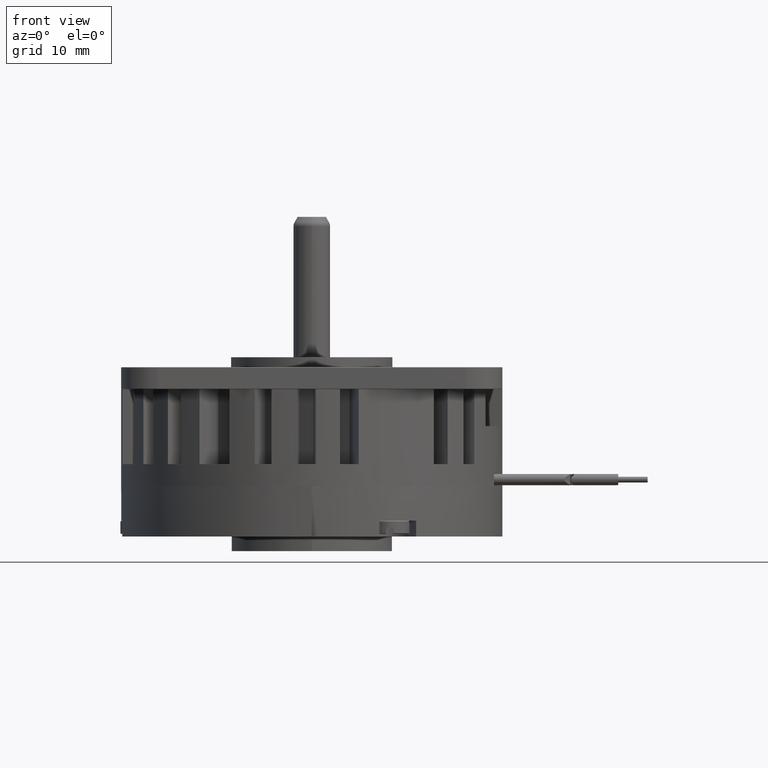
[diagram: clean part render]
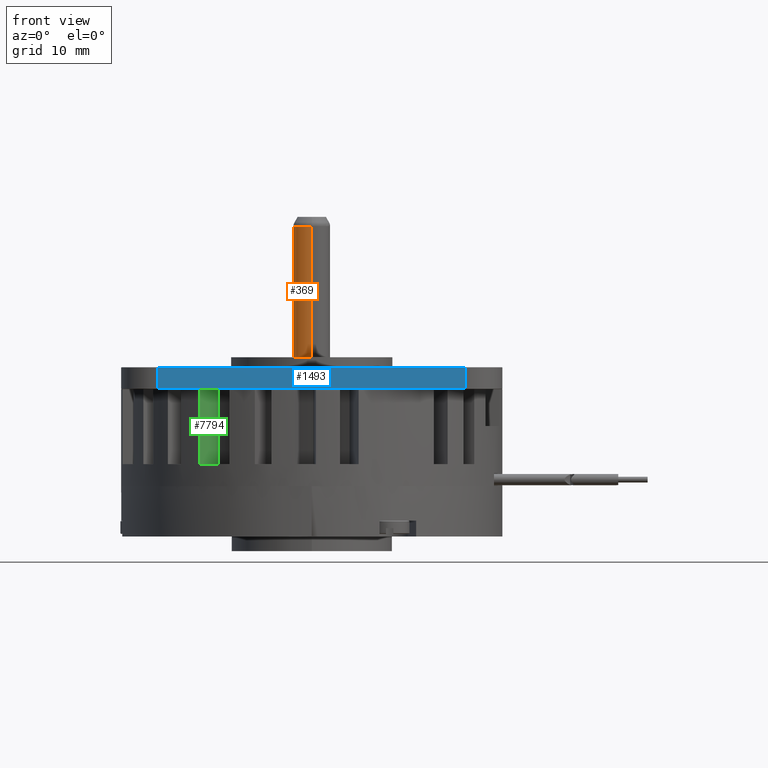
[diagram: same view with three faces highlighted in distinct colors, each labeled with its STEP entity id]
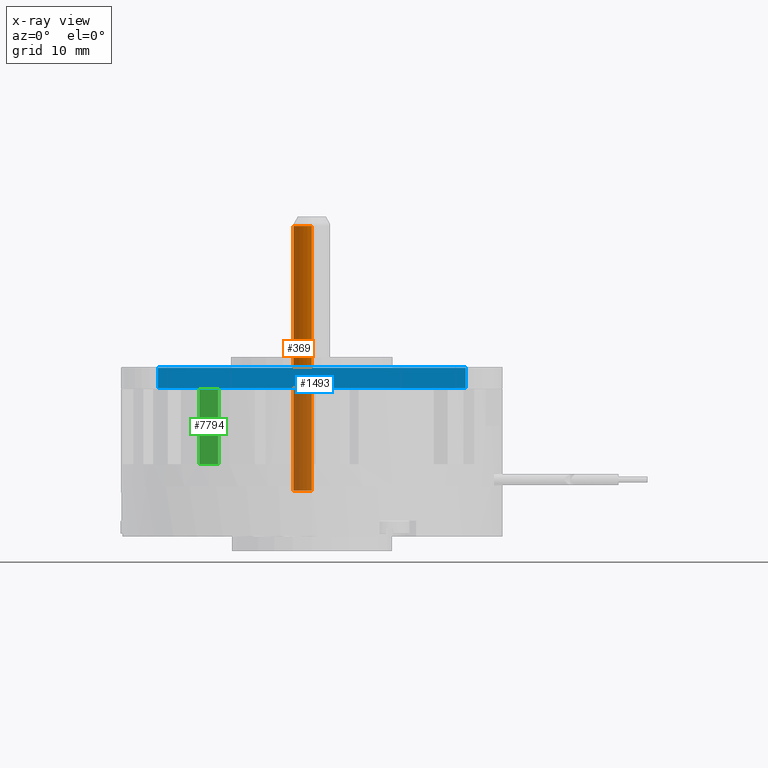
[diagram: x-ray of the same camera — body ghosted, the three highlighted faces saturated]
A machine part, front view with three faces highlighted in distinct colors.
The next image is the same camera in x-ray (body ghosted, the three faces saturated) — at least one of them is partly hidden behind the body in this view.
Their STEP definitions:

[orange] entity #369 — the highlighted cylindrical surface (edge-blend (fillet) strip) has radius 2.5 mm, axis along (0, 0, 1).
#55=DIRECTION('',(1.E0,0.E0,-1.843186516027E-11));
#56=VECTOR('',#55,3.606402845694E1);
#57=CARTESIAN_POINT('',(-1.803201538990E1,-2.5E0,3.555489448781E-10));
#58=LINE('',#57,#56);
#89=CARTESIAN_POINT('',(-1.803201532598E1,0.E0,0.E0));
#90=DIRECTION('',(1.E0,0.E0,0.E0));
#91=DIRECTION('',(0.E0,1.E0,-9.016465692266E-12));
#92=AXIS2_PLACEMENT_3D('',#89,#90,#91);
#94=CARTESIAN_POINT('',(-1.803201532598E1,0.E0,0.E0));
#95=DIRECTION('',(1.E0,0.E0,0.E0));
#96=DIRECTION('',(0.E0,-9.996799739003E-1,2.529722875440E-2));
#97=AXIS2_PLACEMENT_3D('',#94,#95,#96);
#119=DIRECTION('',(1.E0,0.E0,1.843186756533E-11));
#120=VECTOR('',#119,3.606402845694E1);
#121=CARTESIAN_POINT('',(-1.803201538990E1,2.5E0,-3.668194606487E-10));
#122=LINE('',#121,#120);
#123=CARTESIAN_POINT('',(1.803201300224E1,0.E0,0.E0));
#124=DIRECTION('',(-1.E0,0.E0,0.E0));
#125=DIRECTION('',(0.E0,-1.E0,0.E0));
#126=AXIS2_PLACEMENT_3D('',#123,#124,#125);
#128=CARTESIAN_POINT('',(1.803201300224E1,0.E0,0.E0));
#129=DIRECTION('',(-1.E0,0.E0,0.E0));
#130=DIRECTION('',(0.E0,9.997307227903E-1,2.320521297385E-2));
#131=AXIS2_PLACEMENT_3D('',#128,#129,#130);
#201=CARTESIAN_POINT('',(1.803201300224E1,2.5E0,-2.254116423066E-11));
#203=VERTEX_POINT('',#201);
#205=CARTESIAN_POINT('',(1.803201300224E1,-2.5E0,0.E0));
#206=VERTEX_POINT('',#205);
#207=CARTESIAN_POINT('',(-1.803201532598E1,-2.5E0,0.E0));
#209=VERTEX_POINT('',#207);
#211=CARTESIAN_POINT('',(-1.803201532598E1,2.5E0,-2.254114950251E-11));
#212=VERTEX_POINT('',#211);
#221=CARTESIAN_POINT('',(-1.803201532598E1,-2.499199934751E0,
6.324307188600E-2));
#222=VERTEX_POINT('',#221);
#227=CARTESIAN_POINT('',(1.803201300224E1,2.499326806976E0,5.801303243462E-2));
#228=VERTEX_POINT('',#227);
#354=CARTESIAN_POINT('',(-2.123E1,0.E0,0.E0));
#355=DIRECTION('',(1.E0,0.E0,0.E0));
#356=DIRECTION('',(0.E0,-1.E0,0.E0));
#357=AXIS2_PLACEMENT_3D('',#354,#355,#356);
#358=CYLINDRICAL_SURFACE('',#357,2.5E0);
#359=ORIENTED_EDGE('',*,*,#341,.F.);
#360=ORIENTED_EDGE('',*,*,#339,.F.);
#361=ORIENTED_EDGE('',*,*,#309,.T.);
#363=ORIENTED_EDGE('',*,*,#362,.F.);
#365=ORIENTED_EDGE('',*,*,#364,.F.);
#366=ORIENTED_EDGE('',*,*,#305,.F.);
#367=EDGE_LOOP('',(#359,#360,#361,#363,#365,#366));
#368=FACE_OUTER_BOUND('',#367,.F.);
#369=ADVANCED_FACE('',(#368),#358,.T.);
#93=CIRCLE('',#92,2.5E0);
#98=CIRCLE('',#97,2.5E0);
#127=CIRCLE('',#126,2.5E0);
#132=CIRCLE('',#131,2.5E0);
#305=EDGE_CURVE('',#209,#206,#58,.T.);
#309=EDGE_CURVE('',#212,#203,#122,.T.);
#339=EDGE_CURVE('',#212,#222,#93,.T.);
#341=EDGE_CURVE('',#222,#209,#98,.T.);
#362=EDGE_CURVE('',#228,#203,#132,.T.);
#364=EDGE_CURVE('',#206,#228,#127,.T.);

[blue] entity #1493 — the highlighted planar face has unit normal (0, -1, 0).
#652=DIRECTION('',(-1.E0,0.E0,0.E0));
#653=VECTOR('',#652,4.199999999927E1);
#654=CARTESIAN_POINT('',(2.099999999973E1,1.4E0,2.6E1));
#655=LINE('',#654,#653);
#725=DIRECTION('',(0.E0,-1.E0,0.E0));
#726=VECTOR('',#725,2.8E0);
#727=CARTESIAN_POINT('',(-2.099999999953E1,1.4E0,2.6E1));
#728=LINE('',#727,#726);
#737=DIRECTION('',(0.E0,1.E0,0.E0));
#738=VECTOR('',#737,2.8E0);
#739=CARTESIAN_POINT('',(2.099999999973E1,-1.4E0,2.6E1));
#740=LINE('',#739,#738);
#909=DIRECTION('',(1.E0,0.E0,0.E0));
#910=VECTOR('',#909,4.199999999927E1);
#911=CARTESIAN_POINT('',(-2.099999999953E1,-1.4E0,2.6E1));
#912=LINE('',#911,#910);
#1155=CARTESIAN_POINT('',(-2.1E1,1.4E0,2.6E1));
#1156=VERTEX_POINT('',#1155);
#1159=CARTESIAN_POINT('',(2.1E1,1.4E0,2.6E1));
#1160=VERTEX_POINT('',#1159);
#1175=CARTESIAN_POINT('',(-2.099999999953E1,-1.4E0,2.6E1));
#1176=VERTEX_POINT('',#1175);
#1177=CARTESIAN_POINT('',(2.099999999973E1,-1.4E0,2.6E1));
#1178=VERTEX_POINT('',#1177);
#1480=CARTESIAN_POINT('',(-2.1E1,1.5E0,2.6E1));
#1481=DIRECTION('',(0.E0,0.E0,1.E0));
#1482=DIRECTION('',(1.E0,0.E0,0.E0));
#1483=AXIS2_PLACEMENT_3D('',#1480,#1481,#1482);
#1484=PLANE('',#1483);
#1485=ORIENTED_EDGE('',*,*,#1362,.F.);
#1487=ORIENTED_EDGE('',*,*,#1486,.F.);
#1489=ORIENTED_EDGE('',*,*,#1488,.F.);
#1490=ORIENTED_EDGE('',*,*,#1472,.F.);
#1491=EDGE_LOOP('',(#1485,#1487,#1489,#1490));
#1492=FACE_OUTER_BOUND('',#1491,.F.);
#1493=ADVANCED_FACE('',(#1492),#1484,.T.);
#1362=EDGE_CURVE('',#1160,#1156,#655,.T.);
#1472=EDGE_CURVE('',#1156,#1176,#728,.T.);
#1486=EDGE_CURVE('',#1178,#1160,#740,.T.);
#1488=EDGE_CURVE('',#1176,#1178,#912,.T.);

[green] entity #7794 — the highlighted planar face has unit normal (-0.7692, 0.639, 0).
#2245=DIRECTION('',(-6.390363497036E-1,0.E0,7.691765361459E-1));
#2246=VECTOR('',#2245,4.009553667681E0);
#2247=CARTESIAN_POINT('',(-1.270006227413E1,4.405E0,1.792863385777E1));
#2248=LINE('',#2247,#2246);
#2566=DIRECTION('',(0.E0,-1.E0,1.041851518710E-14));
#2567=VECTOR('',#2566,1.023E1);
#2568=CARTESIAN_POINT('',(-1.526231281386E1,4.405E0,2.101268845937E1));
#2569=LINE('',#2568,#2567);
#4168=DIRECTION('',(0.E0,1.E0,0.E0));
#4169=VECTOR('',#4168,1.023E1);
#4170=CARTESIAN_POINT('',(-1.270006227413E1,-5.825E0,1.792863385777E1));
#4171=LINE('',#4170,#4169);
#4177=DIRECTION('',(6.390363497036E-1,0.E0,-7.691765361459E-1));
#4178=VECTOR('',#4177,4.009553667681E0);
#4179=CARTESIAN_POINT('',(-1.526231281386E1,-5.825E0,2.101268845937E1));
#4180=LINE('',#4179,#4178);
#4402=CARTESIAN_POINT('',(-1.270006227413E1,4.405E0,1.792863385777E1));
#4403=VERTEX_POINT('',#4402);
#4404=CARTESIAN_POINT('',(-1.526231281386E1,4.405E0,2.101268845937E1));
#4405=VERTEX_POINT('',#4404);
#4550=CARTESIAN_POINT('',(-1.526231281386E1,-5.825E0,2.101268845937E1));
#4551=VERTEX_POINT('',#4550);
#4950=CARTESIAN_POINT('',(-1.270006227413E1,-5.825E0,1.792863385777E1));
#4951=VERTEX_POINT('',#4950);
#7781=CARTESIAN_POINT('',(-1.270006227413E1,4.405E0,1.792863385777E1));
#7782=DIRECTION('',(-7.691765361455E-1,0.E0,-6.390363497042E-1));
#7783=DIRECTION('',(-6.390363497042E-1,0.E0,7.691765361455E-1));
#7784=AXIS2_PLACEMENT_3D('',#7781,#7782,#7783);
#7785=PLANE('',#7784);
#7786=ORIENTED_EDGE('',*,*,#5159,.F.);
#7788=ORIENTED_EDGE('',*,*,#7787,.F.);
#7790=ORIENTED_EDGE('',*,*,#7789,.F.);
#7791=ORIENTED_EDGE('',*,*,#5346,.F.);
#7792=EDGE_LOOP('',(#7786,#7788,#7790,#7791));
#7793=FACE_OUTER_BOUND('',#7792,.F.);
#7794=ADVANCED_FACE('',(#7793),#7785,.F.);
#5159=EDGE_CURVE('',#4403,#4405,#2248,.T.);
#5346=EDGE_CURVE('',#4405,#4551,#2569,.T.);
#7787=EDGE_CURVE('',#4951,#4403,#4171,.T.);
#7789=EDGE_CURVE('',#4551,#4951,#4180,.T.);